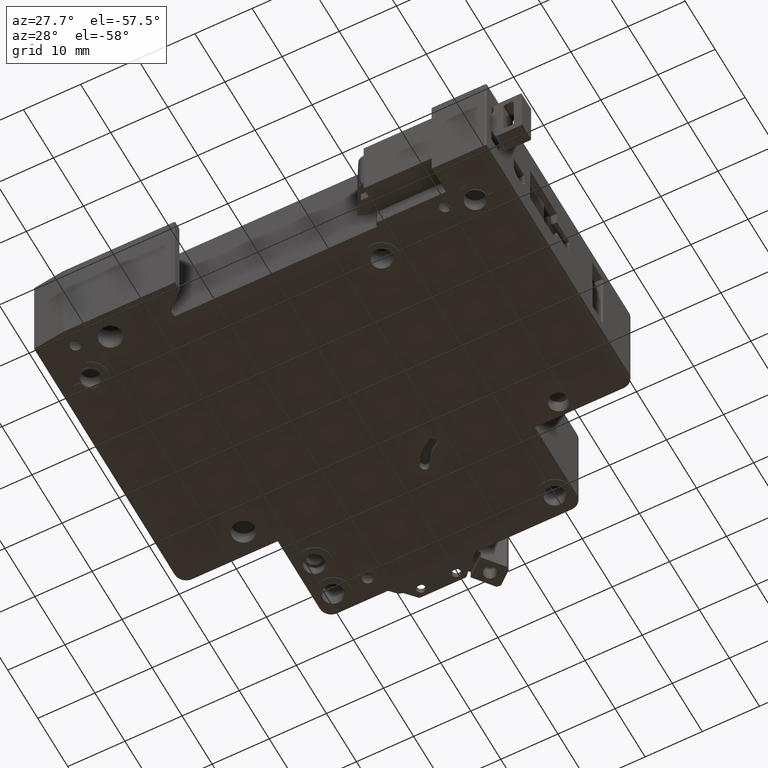
[diagram: clean part render]
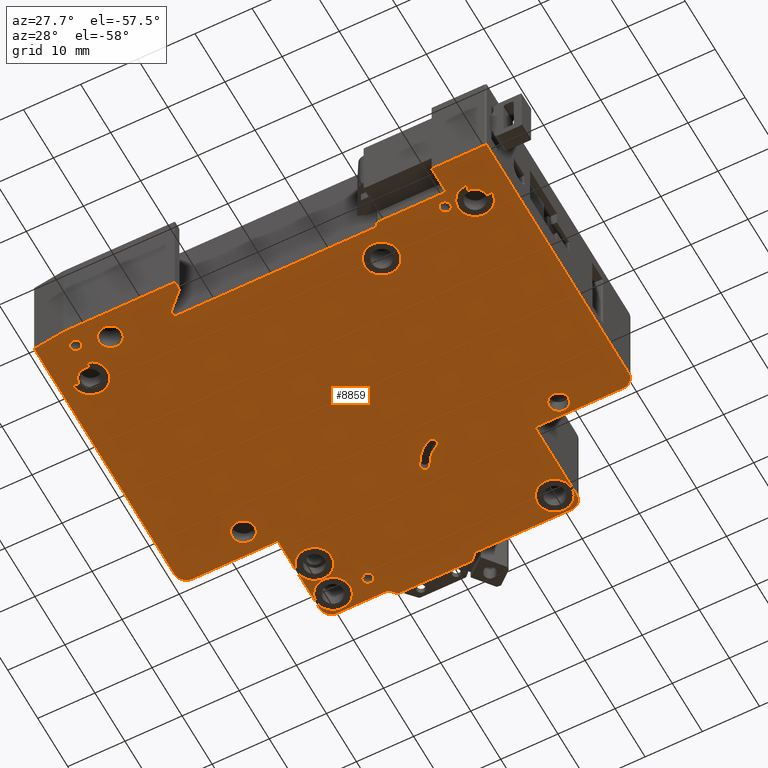
[diagram: same view with one face highlighted and labeled with its STEP entity id]
A machine part, auxiliary view. The second image highlights one B-rep face of the part: STEP entity #8859.
In plain terms, the highlighted planar face has unit normal (-0, 0, 1).
Its self-contained STEP definition (entity closure, byte-faithful):
#11 = EDGE_LOOP ( 'NONE', ( #6555, #13260, #8227, #4003, #1931 ) ) ;
#120 = LINE ( 'NONE', #11288, #13633 ) ;
#124 = CARTESIAN_POINT ( 'NONE',  ( 17.50000000000000000, 63.50000000000330400, -8.750000000000000000 ) ) ;
#125 = CARTESIAN_POINT ( 'NONE',  ( 66.19999999970296800, 47.10000000000715700, -8.750000000000000000 ) ) ;
#130 = CARTESIAN_POINT ( 'NONE',  ( 73.29999999999999700, 6.240408205773521300, -8.750000000000000000 ) ) ;
#146 = AXIS2_PLACEMENT_3D ( 'NONE', #11470, #3626, #12757 ) ;
#174 = DIRECTION ( 'NONE',  ( 1.000000000000000000, 0.0000000000000000000, 0.0000000000000000000 ) ) ;
#229 = EDGE_CURVE ( 'NONE', #15652, #9985, #15450, .T. ) ;
#244 = VERTEX_POINT ( 'NONE', #9984 ) ;
#281 = CIRCLE ( 'NONE', #1160, 1.999999999999960000 ) ;
#297 = ORIENTED_EDGE ( 'NONE', *, *, #7767, .T. ) ;
#307 = AXIS2_PLACEMENT_3D ( 'NONE', #10347, #2452, #11617 ) ;
#355 = DIRECTION ( 'NONE',  ( 1.000000000000000000, 0.0000000000000000000, 0.0000000000000000000 ) ) ;
#373 = ORIENTED_EDGE ( 'NONE', *, *, #14328, .F. ) ;
#458 = DIRECTION ( 'NONE',  ( 0.0000000000000000000, -0.0000000000000000000, -1.000000000000000000 ) ) ;
#522 = CARTESIAN_POINT ( 'NONE',  ( 55.89999999999999900, 11.00000000000000400, -8.750000000000000000 ) ) ;
#526 = AXIS2_PLACEMENT_3D ( 'NONE', #14039, #6397, #15318 ) ;
#533 = LINE ( 'NONE', #16561, #7247 ) ;
#553 = CARTESIAN_POINT ( 'NONE',  ( 58.00000000000000700, 5.299999999972984100, -8.750000000000000000 ) ) ;
#557 = VERTEX_POINT ( 'NONE', #3893 ) ;
#587 = CARTESIAN_POINT ( 'NONE',  ( 19.50000000000000000, 65.50000000000331100, -8.750000000000000000 ) ) ;
#688 = DIRECTION ( 'NONE',  ( 0.0000000000000000000, -0.0000000000000000000, -1.000000000000000000 ) ) ;
#762 = CARTESIAN_POINT ( 'NONE',  ( 58.00000000000000700, 5.500000000000038200, -8.750000000000000000 ) ) ;
#808 = EDGE_CURVE ( 'NONE', #9985, #3385, #11209, .T. ) ;
#822 = AXIS2_PLACEMENT_3D ( 'NONE', #15969, #8339, #355 ) ;
#874 = DIRECTION ( 'NONE',  ( 1.000000000000000000, 0.0000000000000000000, 0.0000000000000000000 ) ) ;
#896 = DIRECTION ( 'NONE',  ( -0.0000000000000000000, 0.0000000000000000000, 1.000000000000000000 ) ) ;
#914 = CARTESIAN_POINT ( 'NONE',  ( 49.50000000000064700, 49.99999999999789700, -8.750000000000000000 ) ) ;
#926 = EDGE_CURVE ( 'NONE', #3385, #4048, #8819, .T. ) ;
#943 = CARTESIAN_POINT ( 'NONE',  ( 76.70000000000000300, 8.199999999999999300, -8.750000000000000000 ) ) ;
#969 = VERTEX_POINT ( 'NONE', #2380 ) ;
#988 = DIRECTION ( 'NONE',  ( 1.591098326534340900E-011, -1.000000000000000000, 0.0000000000000000000 ) ) ;
#1007 = AXIS2_PLACEMENT_3D ( 'NONE', #5756, #14728, #7104 ) ;
#1016 = DIRECTION ( 'NONE',  ( -0.0000000000000000000, 0.0000000000000000000, 1.000000000000000000 ) ) ;
#1023 = VERTEX_POINT ( 'NONE', #3833 ) ;
#1024 = CARTESIAN_POINT ( 'NONE',  ( -17.27440989133160100, 15.91064068936660900, -8.750000000000000000 ) ) ;
#1030 = VERTEX_POINT ( 'NONE', #1201 ) ;
#1050 = ORIENTED_EDGE ( 'NONE', *, *, #4686, .T. ) ;
#1083 = CARTESIAN_POINT ( 'NONE',  ( -10.82500000000569100, 10.82500000000719200, -8.750000000000000000 ) ) ;
#1108 = LINE ( 'NONE', #2226, #14556 ) ;
#1110 = CARTESIAN_POINT ( 'NONE',  ( 56.39999999986779500, 61.99999999992734700, -8.750000000000000000 ) ) ;
#1122 = CARTESIAN_POINT ( 'NONE',  ( 3.559109769979346400, 9.700000000000136100, -8.750000000000000000 ) ) ;
#1131 = DIRECTION ( 'NONE',  ( -0.0000000000000000000, 0.0000000000000000000, 1.000000000000000000 ) ) ;
#1134 = CARTESIAN_POINT ( 'NONE',  ( 73.70000000000000300, 8.199999999999999300, -8.750000000000000000 ) ) ;
#1159 = ORIENTED_EDGE ( 'NONE', *, *, #5497, .F. ) ;
#1160 = AXIS2_PLACEMENT_3D ( 'NONE', #2594, #11756, #3931 ) ;
#1201 = CARTESIAN_POINT ( 'NONE',  ( 69.95000000000001700, 7.200000000000033000, -8.750000000000000000 ) ) ;
#1337 = CARTESIAN_POINT ( 'NONE',  ( 60.49999999999850100, 63.50000000000329000, -8.750000000000000000 ) ) ;
#1364 = ORIENTED_EDGE ( 'NONE', *, *, #6635, .F. ) ;
#1378 = AXIS2_PLACEMENT_3D ( 'NONE', #6353, #15272, #7660 ) ;
#1415 = CIRCLE ( 'NONE', #8889, 1.999999999999998200 ) ;
#1419 = VERTEX_POINT ( 'NONE', #9990 ) ;
#1479 = EDGE_CURVE ( 'NONE', #15849, #6270, #11782, .T. ) ;
#1510 = AXIS2_PLACEMENT_3D ( 'NONE', #6034, #14980, #7370 ) ;
#1520 = AXIS2_PLACEMENT_3D ( 'NONE', #8894, #8813, #8772 ) ;
#1542 = AXIS2_PLACEMENT_3D ( 'NONE', #8668, #688, #9946 ) ;
#1545 = DIRECTION ( 'NONE',  ( 0.0000000000000000000, 1.000000000000000000, 0.0000000000000000000 ) ) ;
#1568 = CIRCLE ( 'NONE', #3742, 2.999999999999999100 ) ;
#1679 = DIRECTION ( 'NONE',  ( 0.0000000000000000000, -0.0000000000000000000, -1.000000000000000000 ) ) ;
#1682 = VERTEX_POINT ( 'NONE', #8854 ) ;
#1751 = DIRECTION ( 'NONE',  ( -0.6774757547513864400, 0.7355451051594588100, 0.0000000000000000000 ) ) ;
#1789 = ORIENTED_EDGE ( 'NONE', *, *, #8390, .F. ) ;
#1793 = ORIENTED_EDGE ( 'NONE', *, *, #10866, .F. ) ;
#1822 = FACE_BOUND ( 'NONE', #7690, .T. ) ;
#1827 = CARTESIAN_POINT ( 'NONE',  ( 5.999999999424611400, 1.084202172485504400E-016, -8.750000000000000000 ) ) ;
#1849 = VERTEX_POINT ( 'NONE', #8263 ) ;
#1858 = DIRECTION ( 'NONE',  ( 1.000000000000000000, 0.0000000000000000000, 0.0000000000000000000 ) ) ;
#1925 = CARTESIAN_POINT ( 'NONE',  ( 6.500000000000005300, 7.645950378226102000, -8.750000000000000000 ) ) ;
#1931 = ORIENTED_EDGE ( 'NONE', *, *, #6647, .T. ) ;
#2016 = EDGE_LOOP ( 'NONE', ( #11364, #1364 ) ) ;
#2020 = EDGE_CURVE ( 'NONE', #11323, #1419, #10181, .T. ) ;
#2066 = ORIENTED_EDGE ( 'NONE', *, *, #9122, .T. ) ;
#2068 = CARTESIAN_POINT ( 'NONE',  ( 5.750000000000005300, 9.500000000000008900, -8.750000000000000000 ) ) ;
#2087 = VECTOR ( 'NONE', #14645, 1000.000000000000000 ) ;
#2121 = EDGE_CURVE ( 'NONE', #15849, #14535, #11960, .T. ) ;
#2129 = CARTESIAN_POINT ( 'NONE',  ( 28.19999999999816300, 65.45000000000330000, -8.750000000000000000 ) ) ;
#2156 = CIRCLE ( 'NONE', #11795, 3.000000000000002700 ) ;
#2209 = CARTESIAN_POINT ( 'NONE',  ( 14.00000000000000000, 4.200000000000000200, -8.750000000000000000 ) ) ;
#2226 = CARTESIAN_POINT ( 'NONE',  ( 58.00000000000000700, 0.0000000000000000000, -8.750000000000000000 ) ) ;
#2255 = FACE_BOUND ( 'NONE', #12875, .T. ) ;
#2269 = CARTESIAN_POINT ( 'NONE',  ( 29.50526315788970100, 66.70000000000642600, -8.750000000000000000 ) ) ;
#2322 = ORIENTED_EDGE ( 'NONE', *, *, #10321, .F. ) ;
#2323 = VERTEX_POINT ( 'NONE', #14750 ) ;
#2337 = AXIS2_PLACEMENT_3D ( 'NONE', #3653, #12779, #5005 ) ;
#2370 = DIRECTION ( 'NONE',  ( -0.6774757547513813300, -0.7355451051594634700, 0.0000000000000000000 ) ) ;
#2380 = CARTESIAN_POINT ( 'NONE',  ( 28.19999999999736300, 65.50037037828450100, -8.750000000000000000 ) ) ;
#2416 = CIRCLE ( 'NONE', #3897, 0.4999999999985189600 ) ;
#2450 = AXIS2_PLACEMENT_3D ( 'NONE', #13499, #5798, #14766 ) ;
#2452 = DIRECTION ( 'NONE',  ( 0.0000000000000000000, -0.0000000000000000000, -1.000000000000000000 ) ) ;
#2473 = DIRECTION ( 'NONE',  ( 1.000000000000000000, 0.0000000000000000000, 0.0000000000000000000 ) ) ;
#2480 = DIRECTION ( 'NONE',  ( 1.000000000000000000, 0.0000000000000000000, 0.0000000000000000000 ) ) ;
#2505 = EDGE_CURVE ( 'NONE', #5124, #16059, #4612, .T. ) ;
#2520 = ORIENTED_EDGE ( 'NONE', *, *, #4971, .T. ) ;
#2536 = CIRCLE ( 'NONE', #8560, 3.000000000000002700 ) ;
#2563 = EDGE_CURVE ( 'NONE', #15237, #9069, #8150, .T. ) ;
#2594 = CARTESIAN_POINT ( 'NONE',  ( 73.70000000000001700, 8.200000000000020600, -8.750000000000000000 ) ) ;
#2613 = EDGE_CURVE ( 'NONE', #6368, #14535, #2927, .T. ) ;
#2628 = DIRECTION ( 'NONE',  ( 0.0000000000000000000, -0.0000000000000000000, -1.000000000000000000 ) ) ;
#2642 = LINE ( 'NONE', #2882, #13442 ) ;
#2680 = FACE_BOUND ( 'NONE', #7873, .T. ) ;
#2693 = DIRECTION ( 'NONE',  ( 1.000000000000000000, 0.0000000000000000000, 0.0000000000000000000 ) ) ;
#2808 = EDGE_CURVE ( 'NONE', #244, #6368, #10144, .T. ) ;
#2820 = ORIENTED_EDGE ( 'NONE', *, *, #11987, .T. ) ;
#2875 = VERTEX_POINT ( 'NONE', #15559 ) ;
#2882 = CARTESIAN_POINT ( 'NONE',  ( 1.637829011552916400E-013, 65.50000000000342500, -8.750000000000000000 ) ) ;
#2927 = LINE ( 'NONE', #6072, #12938 ) ;
#2939 = EDGE_CURVE ( 'NONE', #16337, #3882, #15296, .T. ) ;
#2974 = ORIENTED_EDGE ( 'NONE', *, *, #6549, .F. ) ;
#3007 = CARTESIAN_POINT ( 'NONE',  ( 6.767857142857136100, 6.677949887628723300, -8.750000000000000000 ) ) ;
#3056 = DIRECTION ( 'NONE',  ( 1.000000000000000000, 5.801495453212029500E-015, 0.0000000000000000000 ) ) ;
#3078 = CARTESIAN_POINT ( 'NONE',  ( 73.20000000000001700, 5.750510257216852500, -8.750000000000000000 ) ) ;
#3087 = FACE_BOUND ( 'NONE', #16807, .T. ) ;
#3130 = ORIENTED_EDGE ( 'NONE', *, *, #12853, .F. ) ;
#3142 = EDGE_CURVE ( 'NONE', #244, #16149, #5638, .T. ) ;
#3151 = ORIENTED_EDGE ( 'NONE', *, *, #12675, .T. ) ;
#3256 = CARTESIAN_POINT ( 'NONE',  ( 42.49473684210708800, 66.70000000000648300, -8.750000000000003600 ) ) ;
#3257 = CARTESIAN_POINT ( 'NONE',  ( 69.60000000029705800, 47.10000000000715700, -8.750000000000000000 ) ) ;
#3272 = DIRECTION ( 'NONE',  ( -0.0000000000000000000, 0.0000000000000000000, 1.000000000000000000 ) ) ;
#3335 = EDGE_CURVE ( 'NONE', #15627, #16337, #16073, .T. ) ;
#3343 = AXIS2_PLACEMENT_3D ( 'NONE', #8436, #458, #9738 ) ;
#3376 = CARTESIAN_POINT ( 'NONE',  ( 0.5124999999999999600, 47.50000000000729000, -8.749999999996021000 ) ) ;
#3385 = VERTEX_POINT ( 'NONE', #16147 ) ;
#3386 = EDGE_CURVE ( 'NONE', #16149, #14130, #11910, .T. ) ;
#3395 = LINE ( 'NONE', #10871, #9590 ) ;
#3424 = DIRECTION ( 'NONE',  ( 1.000000000000000000, 0.0000000000000000000, 0.0000000000000000000 ) ) ;
#3449 = VERTEX_POINT ( 'NONE', #7402 ) ;
#3481 = ORIENTED_EDGE ( 'NONE', *, *, #3142, .T. ) ;
#3524 = ORIENTED_EDGE ( 'NONE', *, *, #6268, .T. ) ;
#3537 = ORIENTED_EDGE ( 'NONE', *, *, #13063, .F. ) ;
#3580 = CARTESIAN_POINT ( 'NONE',  ( 70.39999999999999100, 4.799999999974497600, -8.750000000000000000 ) ) ;
#3609 = VECTOR ( 'NONE', #9686, 1000.000000000000000 ) ;
#3626 = DIRECTION ( 'NONE',  ( -0.0000000000000000000, 0.0000000000000000000, 1.000000000000000000 ) ) ;
#3630 = CIRCLE ( 'NONE', #15895, 0.9500000000000063900 ) ;
#3653 = CARTESIAN_POINT ( 'NONE',  ( 20.60000000793647200, 61.99999999992735400, -8.750000000000000000 ) ) ;
#3667 = CARTESIAN_POINT ( 'NONE',  ( 73.70000000000000300, 5.200000000000001100, -8.750000000000000000 ) ) ;
#3693 = EDGE_CURVE ( 'NONE', #15627, #12276, #6818, .T. ) ;
#3733 = DIRECTION ( 'NONE',  ( 0.0000000000000000000, -0.0000000000000000000, -1.000000000000000000 ) ) ;
#3742 = AXIS2_PLACEMENT_3D ( 'NONE', #12655, #4871, #13893 ) ;
#3833 = CARTESIAN_POINT ( 'NONE',  ( 17.60000000793647200, 55.79999999992195800, -8.750000000000000000 ) ) ;
#3835 = DIRECTION ( 'NONE',  ( -0.0000000000000000000, 0.0000000000000000000, 1.000000000000000000 ) ) ;
#3840 = EDGE_CURVE ( 'NONE', #14130, #7762, #14580, .T. ) ;
#3857 = CARTESIAN_POINT ( 'NONE',  ( 0.5125000000000009500, 0.6737802779089938600, -8.750000000000000000 ) ) ;
#3882 = VERTEX_POINT ( 'NONE', #11326 ) ;
#3893 = CARTESIAN_POINT ( 'NONE',  ( 60.49999999999850100, 65.50000000000328300, -8.750000000000000000 ) ) ;
#3897 = AXIS2_PLACEMENT_3D ( 'NONE', #3905, #13008, #5254 ) ;
#3899 = VERTEX_POINT ( 'NONE', #15198 ) ;
#3905 = CARTESIAN_POINT ( 'NONE',  ( 28.18075834983112000, 66.00000000000179100, -8.750000000000000000 ) ) ;
#3931 = DIRECTION ( 'NONE',  ( 1.000000000000000000, 0.0000000000000000000, 0.0000000000000000000 ) ) ;
#3940 = LINE ( 'NONE', #6045, #13489 ) ;
#3986 = CARTESIAN_POINT ( 'NONE',  ( 25.50000000000000400, 0.0000000000000000000, -8.750000000000000000 ) ) ;
#4003 = ORIENTED_EDGE ( 'NONE', *, *, #926, .T. ) ;
#4006 = ORIENTED_EDGE ( 'NONE', *, *, #11709, .T. ) ;
#4048 = VERTEX_POINT ( 'NONE', #15536 ) ;
#4051 = VERTEX_POINT ( 'NONE', #7910 ) ;
#4109 = EDGE_LOOP ( 'NONE', ( #3151, #2066 ) ) ;
#4112 = CARTESIAN_POINT ( 'NONE',  ( 69.00000000000000000, 7.200000000000033000, -8.750000000000000000 ) ) ;
#4229 = CARTESIAN_POINT ( 'NONE',  ( 23.60000000793646900, 55.79999999992195800, -8.750000000000000000 ) ) ;
#4274 = DIRECTION ( 'NONE',  ( -0.0000000000000000000, 0.0000000000000000000, 1.000000000000000000 ) ) ;
#4294 = AXIS2_PLACEMENT_3D ( 'NONE', #1337, #10572, #2693 ) ;
#4307 = VERTEX_POINT ( 'NONE', #9100 ) ;
#4327 = VECTOR ( 'NONE', #13983, 1000.000000000000000 ) ;
#4341 = EDGE_CURVE ( 'NONE', #12276, #16048, #281, .T. ) ;
#4369 = EDGE_CURVE ( 'NONE', #1419, #11323, #13785, .T. ) ;
#4405 = ORIENTED_EDGE ( 'NONE', *, *, #4710, .F. ) ;
#4426 = DIRECTION ( 'NONE',  ( 1.000000000000000000, 0.0000000000000000000, 0.0000000000000000000 ) ) ;
#4472 = CARTESIAN_POINT ( 'NONE',  ( 0.0000000000000000000, 9.500000000000147400, -8.750000000000000000 ) ) ;
#4477 = EDGE_CURVE ( 'NONE', #9395, #7762, #6168, .T. ) ;
#4561 = ORIENTED_EDGE ( 'NONE', *, *, #2808, .F. ) ;
#4577 = DIRECTION ( 'NONE',  ( 0.0000000000000000000, 1.000000000000000000, -0.0000000000000000000 ) ) ;
#4612 = CIRCLE ( 'NONE', #13719, 1.700000000297047200 ) ;
#4664 = CIRCLE ( 'NONE', #5890, 0.5000000000000420800 ) ;
#4672 = CARTESIAN_POINT ( 'NONE',  ( 73.70000000000001700, 5.750510257216852500, -8.750000000000000000 ) ) ;
#4686 = EDGE_CURVE ( 'NONE', #16048, #16454, #4664, .T. ) ;
#4695 = CIRCLE ( 'NONE', #2337, 2.999999999999999100 ) ;
#4710 = EDGE_CURVE ( 'NONE', #5401, #9395, #1108, .T. ) ;
#4746 = AXIS2_PLACEMENT_3D ( 'NONE', #5351, #14353, #6724 ) ;
#4807 = ORIENTED_EDGE ( 'NONE', *, *, #3840, .T. ) ;
#4827 = CIRCLE ( 'NONE', #3343, 2.999999999999999100 ) ;
#4837 = VECTOR ( 'NONE', #15632, 1000.000000000000000 ) ;
#4852 = AXIS2_PLACEMENT_3D ( 'NONE', #3078, #12224, #4426 ) ;
#4871 = DIRECTION ( 'NONE',  ( 0.0000000000000000000, -0.0000000000000000000, -1.000000000000000000 ) ) ;
#4922 = VECTOR ( 'NONE', #7123, 1000.000000000000000 ) ;
#4928 = CARTESIAN_POINT ( 'NONE',  ( 76.14948974278321700, 8.700000000000020600, -8.750000000000000000 ) ) ;
#4970 = LINE ( 'NONE', #15934, #11877 ) ;
#4971 = EDGE_CURVE ( 'NONE', #10137, #15686, #6375, .T. ) ;
#5005 = DIRECTION ( 'NONE',  ( 1.000000000000000000, 0.0000000000000000000, 0.0000000000000000000 ) ) ;
#5010 = VERTEX_POINT ( 'NONE', #16752 ) ;
#5124 = VERTEX_POINT ( 'NONE', #125 ) ;
#5130 = ORIENTED_EDGE ( 'NONE', *, *, #4477, .F. ) ;
#5178 = ORIENTED_EDGE ( 'NONE', *, *, #1479, .F. ) ;
#5198 = CIRCLE ( 'NONE', #146, 1.700000000297047200 ) ;
#5254 = DIRECTION ( 'NONE',  ( 1.000000000000000000, 0.0000000000000000000, 0.0000000000000000000 ) ) ;
#5285 = EDGE_CURVE ( 'NONE', #14698, #5401, #6136, .T. ) ;
#5313 = CARTESIAN_POINT ( 'NONE',  ( 43.79999999969146500, -2.051483660483898700E-010, -8.750000000000000000 ) ) ;
#5351 = CARTESIAN_POINT ( 'NONE',  ( 6.500000000000005300, 3.100000000000019200, -8.750000000000000000 ) ) ;
#5376 = CARTESIAN_POINT ( 'NONE',  ( 77.98750000000002600, 47.50000000000739700, -8.750000000000000000 ) ) ;
#5401 = VERTEX_POINT ( 'NONE', #762 ) ;
#5403 = FACE_OUTER_BOUND ( 'NONE', #12475, .T. ) ;
#5479 = DIRECTION ( 'NONE',  ( 1.000000000000000000, 0.0000000000000000000, 0.0000000000000000000 ) ) ;
#5497 = EDGE_CURVE ( 'NONE', #8692, #16454, #5903, .T. ) ;
#5524 = DIRECTION ( 'NONE',  ( -1.000000000000000000, 2.500502307714245400E-015, 0.0000000000000000000 ) ) ;
#5536 = CIRCLE ( 'NONE', #10268, 2.999999999999995600 ) ;
#5569 = VERTEX_POINT ( 'NONE', #3376 ) ;
#5581 = ORIENTED_EDGE ( 'NONE', *, *, #2121, .T. ) ;
#5589 = VERTEX_POINT ( 'NONE', #6149 ) ;
#5594 = CIRCLE ( 'NONE', #6154, 0.1999999999999875200 ) ;
#5609 = CARTESIAN_POINT ( 'NONE',  ( 58.49999999999850800, 4.799999999974497600, -8.750000000000000000 ) ) ;
#5610 = VECTOR ( 'NONE', #11974, 1000.000000000000000 ) ;
#5611 = CARTESIAN_POINT ( 'NONE',  ( 46.82499999999878100, 46.82500000000527500, -8.750000000000000000 ) ) ;
#5638 = LINE ( 'NONE', #6157, #6085 ) ;
#5654 = LINE ( 'NONE', #13382, #2087 ) ;
#5677 = CARTESIAN_POINT ( 'NONE',  ( 17.60000000793647200, 61.99999999992735400, -8.750000000000000000 ) ) ;
#5745 = EDGE_CURVE ( 'NONE', #5916, #14698, #9569, .T. ) ;
#5747 = CARTESIAN_POINT ( 'NONE',  ( 3.520755674482790200E-014, 5.500000000000409500, -8.750000000000000000 ) ) ;
#5756 = CARTESIAN_POINT ( 'NONE',  ( 5.750000000000005300, 9.500000000000008900, -8.750000000000000000 ) ) ;
#5767 = CARTESIAN_POINT ( 'NONE',  ( 67.90000000000002000, 47.10000000000715700, -8.750000000000000000 ) ) ;
#5797 = AXIS2_PLACEMENT_3D ( 'NONE', #11660, #3835, #12947 ) ;
#5798 = DIRECTION ( 'NONE',  ( -0.0000000000000000000, 0.0000000000000000000, 1.000000000000000000 ) ) ;
#5825 = FACE_BOUND ( 'NONE', #4109, .T. ) ;
#5849 = EDGE_CURVE ( 'NONE', #10530, #1030, #11190, .T. ) ;
#5878 = LINE ( 'NONE', #6416, #8974 ) ;
#5890 = AXIS2_PLACEMENT_3D ( 'NONE', #4928, #13950, #6304 ) ;
#5903 = LINE ( 'NONE', #13994, #12367 ) ;
#5916 = VERTEX_POINT ( 'NONE', #14523 ) ;
#5962 = EDGE_CURVE ( 'NONE', #14514, #5916, #3395, .T. ) ;
#6034 = CARTESIAN_POINT ( 'NONE',  ( 26.70000000006790900, 61.99999999992734700, -8.750000000000000000 ) ) ;
#6045 = CARTESIAN_POINT ( 'NONE',  ( -6.397620645963808400E-014, 49.50000000000729700, -8.750000000000000000 ) ) ;
#6070 = ORIENTED_EDGE ( 'NONE', *, *, #9142, .F. ) ;
#6072 = CARTESIAN_POINT ( 'NONE',  ( 79.98750000000002600, 0.0000000000000000000, -8.750000000000000000 ) ) ;
#6085 = VECTOR ( 'NONE', #15045, 1000.000000000000000 ) ;
#6107 = CARTESIAN_POINT ( 'NONE',  ( 43.42466796721388500, 47.42117455197082200, -8.750000000000000000 ) ) ;
#6136 = LINE ( 'NONE', #5747, #9584 ) ;
#6147 = DIRECTION ( 'NONE',  ( -1.000000000000000000, 4.663235150475291800E-017, -0.0000000000000000000 ) ) ;
#6149 = CARTESIAN_POINT ( 'NONE',  ( 3.559109769979346400, 9.500000000000147400, -8.750000000000000000 ) ) ;
#6154 = AXIS2_PLACEMENT_3D ( 'NONE', #13993, #6362, #15280 ) ;
#6157 = CARTESIAN_POINT ( 'NONE',  ( 9.066674948072921700E-025, 8.151842603365492200E-012, -8.750000000000000000 ) ) ;
#6168 = CIRCLE ( 'NONE', #822, 0.4999999999984877700 ) ;
#6268 = EDGE_CURVE ( 'NONE', #11953, #8357, #6358, .T. ) ;
#6270 = VERTEX_POINT ( 'NONE', #13767 ) ;
#6274 = FACE_BOUND ( 'NONE', #12671, .T. ) ;
#6304 = DIRECTION ( 'NONE',  ( 1.000000000000000000, 0.0000000000000000000, 0.0000000000000000000 ) ) ;
#6348 = LINE ( 'NONE', #13173, #9382 ) ;
#6349 = CARTESIAN_POINT ( 'NONE',  ( 17.50000000000000000, 0.0000000000000000000, -8.750000000000000000 ) ) ;
#6353 = CARTESIAN_POINT ( 'NONE',  ( 13.60000000000000000, 45.50000000000000000, -8.750000000000000000 ) ) ;
#6358 = CIRCLE ( 'NONE', #15681, 2.000000000000005300 ) ;
#6362 = DIRECTION ( 'NONE',  ( -0.0000000000000000000, 0.0000000000000000000, 1.000000000000000000 ) ) ;
#6368 = VERTEX_POINT ( 'NONE', #13858 ) ;
#6375 = CIRCLE ( 'NONE', #15021, 2.000000000000000000 ) ;
#6397 = DIRECTION ( 'NONE',  ( -0.0000000000000000000, 0.0000000000000000000, 1.000000000000000000 ) ) ;
#6416 = CARTESIAN_POINT ( 'NONE',  ( 0.08911282116996747900, 0.7257656867554843600, -8.750000000000000000 ) ) ;
#6426 = EDGE_CURVE ( 'NONE', #3882, #8692, #2536, .T. ) ;
#6486 = CARTESIAN_POINT ( 'NONE',  ( 7.038369070146402800, -22.60712294887754900, -8.750000000000000000 ) ) ;
#6512 = ORIENTED_EDGE ( 'NONE', *, *, #2939, .F. ) ;
#6549 = EDGE_CURVE ( 'NONE', #2323, #14514, #8356, .T. ) ;
#6555 = ORIENTED_EDGE ( 'NONE', *, *, #15383, .F. ) ;
#6635 = EDGE_CURVE ( 'NONE', #4051, #14470, #10563, .T. ) ;
#6647 = EDGE_CURVE ( 'NONE', #4048, #3449, #10168, .T. ) ;
#6701 = PLANE ( 'NONE',  #13537 ) ;
#6724 = DIRECTION ( 'NONE',  ( 1.000000000000000000, 0.0000000000000000000, 0.0000000000000000000 ) ) ;
#6728 = VECTOR ( 'NONE', #16686, 1000.000000000000100 ) ;
#6747 = DIRECTION ( 'NONE',  ( 1.000000000000000000, 0.0000000000000000000, 0.0000000000000000000 ) ) ;
#6754 = VERTEX_POINT ( 'NONE', #587 ) ;
#6811 = CARTESIAN_POINT ( 'NONE',  ( 73.70000000000000300, 8.199999999999999300, -8.750000000000000000 ) ) ;
#6818 = CIRCLE ( 'NONE', #4852, 0.5000000000000004400 ) ;
#6946 = DIRECTION ( 'NONE',  ( 0.0000000000000000000, -0.0000000000000000000, -1.000000000000000000 ) ) ;
#6983 = CARTESIAN_POINT ( 'NONE',  ( 43.79999999999825600, 65.50037037828451500, -8.750000000000000000 ) ) ;
#7086 = EDGE_CURVE ( 'NONE', #9372, #2323, #6348, .T. ) ;
#7094 = AXIS2_PLACEMENT_3D ( 'NONE', #6811, #15730, #8109 ) ;
#7104 = DIRECTION ( 'NONE',  ( 1.000000000000000000, 0.0000000000000000000, 0.0000000000000000000 ) ) ;
#7114 = DIRECTION ( 'NONE',  ( 1.000000000000000000, 0.0000000000000000000, 0.0000000000000000000 ) ) ;
#7123 = DIRECTION ( 'NONE',  ( -1.000000000000000000, 0.0000000000000000000, -0.0000000000000000000 ) ) ;
#7154 = AXIS2_PLACEMENT_3D ( 'NONE', #914, #896, #874 ) ;
#7205 = VERTEX_POINT ( 'NONE', #8374 ) ;
#7247 = VECTOR ( 'NONE', #988, 1000.000000000000000 ) ;
#7261 = CARTESIAN_POINT ( 'NONE',  ( 70.39999999999999100, -4.541671877689661200E-018, -8.750000000000000000 ) ) ;
#7275 = VERTEX_POINT ( 'NONE', #3256 ) ;
#7290 = CARTESIAN_POINT ( 'NONE',  ( 55.89999999999999900, 11.00000000000000400, -8.750000000000000000 ) ) ;
#7312 = DIRECTION ( 'NONE',  ( 0.0000000000000000000, -0.0000000000000000000, -1.000000000000000000 ) ) ;
#7336 = ORIENTED_EDGE ( 'NONE', *, *, #4369, .F. ) ;
#7350 = DIRECTION ( 'NONE',  ( 0.0000000000000000000, 1.000000000000000000, -0.0000000000000000000 ) ) ;
#7370 = DIRECTION ( 'NONE',  ( 1.000000000000000000, 0.0000000000000000000, 0.0000000000000000000 ) ) ;
#7385 = DIRECTION ( 'NONE',  ( -1.000000000000000000, -1.292448615346033400E-015, 0.0000000000000000000 ) ) ;
#7395 = EDGE_CURVE ( 'NONE', #15686, #10137, #15107, .T. ) ;
#7402 = CARTESIAN_POINT ( 'NONE',  ( 47.38690869129654700, 45.46846106481483900, -8.750000000000000000 ) ) ;
#7417 = EDGE_CURVE ( 'NONE', #1023, #13808, #4827, .T. ) ;
#7481 = DIRECTION ( 'NONE',  ( 0.0000000000000000000, 1.000000000000000000, -0.0000000000000000000 ) ) ;
#7537 = EDGE_CURVE ( 'NONE', #9372, #8779, #5878, .T. ) ;
#7548 = VERTEX_POINT ( 'NONE', #15279 ) ;
#7660 = DIRECTION ( 'NONE',  ( 1.000000000000000000, 0.0000000000000000000, 0.0000000000000000000 ) ) ;
#7690 = EDGE_LOOP ( 'NONE', ( #8421, #10368 ) ) ;
#7734 = VERTEX_POINT ( 'NONE', #8157 ) ;
#7762 = VERTEX_POINT ( 'NONE', #5609 ) ;
#7767 = EDGE_CURVE ( 'NONE', #8779, #5569, #5654, .T. ) ;
#7799 = CARTESIAN_POINT ( 'NONE',  ( 58.89999999999999900, 11.00000000000000400, -8.750000000000000000 ) ) ;
#7873 = EDGE_LOOP ( 'NONE', ( #14898, #14407 ) ) ;
#7890 = LINE ( 'NONE', #6349, #4327 ) ;
#7891 = DIRECTION ( 'NONE',  ( -0.0000000000000000000, 0.0000000000000000000, 1.000000000000000000 ) ) ;
#7910 = CARTESIAN_POINT ( 'NONE',  ( 23.60000000793646900, 61.99999999992735400, -8.750000000000000000 ) ) ;
#7988 = DIRECTION ( 'NONE',  ( 1.000000000000000000, 0.0000000000000000000, 0.0000000000000000000 ) ) ;
#8021 = ORIENTED_EDGE ( 'NONE', *, *, #10964, .T. ) ;
#8053 = AXIS2_PLACEMENT_3D ( 'NONE', #11576, #3733, #12852 ) ;
#8109 = DIRECTION ( 'NONE',  ( 1.000000000000000000, 0.0000000000000000000, 0.0000000000000000000 ) ) ;
#8150 = CIRCLE ( 'NONE', #16275, 3.000000000000002700 ) ;
#8157 = CARTESIAN_POINT ( 'NONE',  ( 2.750000000000006200, 9.500000000000147400, -8.750000000000000000 ) ) ;
#8166 = DIRECTION ( 'NONE',  ( -0.0000000000000000000, 0.0000000000000000000, 1.000000000000000000 ) ) ;
#8227 = ORIENTED_EDGE ( 'NONE', *, *, #808, .T. ) ;
#8239 = ORIENTED_EDGE ( 'NONE', *, *, #3335, .F. ) ;
#8263 = CARTESIAN_POINT ( 'NONE',  ( 25.75000000011160900, 61.99999999992734700, -8.750000000000000000 ) ) ;
#8266 = EDGE_CURVE ( 'NONE', #5569, #12456, #9526, .T. ) ;
#8272 = VECTOR ( 'NONE', #15602, 1000.000000000000000 ) ;
#8323 = ORIENTED_EDGE ( 'NONE', *, *, #13604, .F. ) ;
#8339 = DIRECTION ( 'NONE',  ( -0.0000000000000000000, 0.0000000000000000000, 1.000000000000000000 ) ) ;
#8350 = DIRECTION ( 'NONE',  ( -0.7071067811864946200, 0.7071067811866005300, 0.0000000000000000000 ) ) ;
#8353 = ORIENTED_EDGE ( 'NONE', *, *, #9337, .F. ) ;
#8356 = LINE ( 'NONE', #3986, #4837 ) ;
#8357 = VERTEX_POINT ( 'NONE', #1925 ) ;
#8358 = ORIENTED_EDGE ( 'NONE', *, *, #4341, .T. ) ;
#8374 = CARTESIAN_POINT ( 'NONE',  ( 15.60000000000000000, 45.50000000000000000, -8.750000000000000000 ) ) ;
#8383 = CARTESIAN_POINT ( 'NONE',  ( 79.98750000000002600, 47.50000000000739700, -8.750000000000000000 ) ) ;
#8390 = EDGE_CURVE ( 'NONE', #1682, #12456, #3940, .T. ) ;
#8392 = DIRECTION ( 'NONE',  ( 1.000000000000000000, -6.401373953604597600E-015, 0.0000000000000000000 ) ) ;
#8421 = ORIENTED_EDGE ( 'NONE', *, *, #16164, .F. ) ;
#8436 = CARTESIAN_POINT ( 'NONE',  ( 20.60000000793647200, 55.79999999992195800, -8.750000000000000000 ) ) ;
#8458 = CARTESIAN_POINT ( 'NONE',  ( 56.22832521546097000, 51.78924690892013400, -8.750000000000000000 ) ) ;
#8461 = VERTEX_POINT ( 'NONE', #2269 ) ;
#8469 = EDGE_CURVE ( 'NONE', #7205, #7548, #15275, .T. ) ;
#8516 = VECTOR ( 'NONE', #4577, 1000.000000000000000 ) ;
#8560 = AXIS2_PLACEMENT_3D ( 'NONE', #1134, #10389, #2480 ) ;
#8584 = ORIENTED_EDGE ( 'NONE', *, *, #5962, .F. ) ;
#8593 = DIRECTION ( 'NONE',  ( 1.000000000000000000, 0.0000000000000000000, 0.0000000000000000000 ) ) ;
#8668 = CARTESIAN_POINT ( 'NONE',  ( 6.500000000000005300, 3.100000000000019200, -8.750000000000000000 ) ) ;
#8680 = EDGE_CURVE ( 'NONE', #16059, #5124, #5198, .T. ) ;
#8692 = VERTEX_POINT ( 'NONE', #943 ) ;
#8772 = DIRECTION ( 'NONE',  ( 1.000000000000000000, 0.0000000000000000000, 0.0000000000000000000 ) ) ;
#8779 = VERTEX_POINT ( 'NONE', #3857 ) ;
#8813 = DIRECTION ( 'NONE',  ( -0.0000000000000000000, 0.0000000000000000000, 1.000000000000000000 ) ) ;
#8819 = CIRCLE ( 'NONE', #526, 0.7999999999998355100 ) ;
#8824 = CIRCLE ( 'NONE', #13483, 0.4999999999984947000 ) ;
#8836 = LINE ( 'NONE', #8458, #15181 ) ;
#8854 = CARTESIAN_POINT ( 'NONE',  ( 17.50000000000000000, 49.50000000000731900, -8.750000000000000000 ) ) ;
#8859 = ADVANCED_FACE ( 'NONE', ( #9704, #6274, #16061, #12703, #3087, #2680, #9310, #5825, #2255, #15655, #12294, #8921, #5403, #1822 ), #6701, .F. ) ;
#8889 = AXIS2_PLACEMENT_3D ( 'NONE', #8994, #1016, #10264 ) ;
#8894 = CARTESIAN_POINT ( 'NONE',  ( 44.16107184997579100, 47.73375945476193000, -8.750000000000000000 ) ) ;
#8921 = FACE_BOUND ( 'NONE', #11, .T. ) ;
#8974 = VECTOR ( 'NONE', #15335, 1000.000000000000100 ) ;
#8994 = CARTESIAN_POINT ( 'NONE',  ( 19.50000000000000000, 63.50000000000330400, -8.750000000000000000 ) ) ;
#9043 = ORIENTED_EDGE ( 'NONE', *, *, #12360, .F. ) ;
#9050 = DIRECTION ( 'NONE',  ( -0.7071067811865965300, -0.7071067811864985000, 0.0000000000000000000 ) ) ;
#9069 = VERTEX_POINT ( 'NONE', #14872 ) ;
#9095 = CARTESIAN_POINT ( 'NONE',  ( 12.00000000000000000, 4.200000000000000200, -8.750000000000000000 ) ) ;
#9100 = CARTESIAN_POINT ( 'NONE',  ( 28.54853090240978400, 65.66126212262707900, -8.750000000000000000 ) ) ;
#9107 = AXIS2_PLACEMENT_3D ( 'NONE', #14560, #6946, #15855 ) ;
#9122 = EDGE_CURVE ( 'NONE', #5010, #1849, #11679, .T. ) ;
#9142 = EDGE_CURVE ( 'NONE', #9768, #1682, #7890, .T. ) ;
#9238 = CIRCLE ( 'NONE', #1007, 2.000000000000005300 ) ;
#9273 = DIRECTION ( 'NONE',  ( 0.0000000000000000000, -1.000000000000000000, 0.0000000000000000000 ) ) ;
#9288 = CARTESIAN_POINT ( 'NONE',  ( 77.98750000000002600, 49.50000000000739700, -8.750000000000000000 ) ) ;
#9307 = VERTEX_POINT ( 'NONE', #9492 ) ;
#9310 = FACE_BOUND ( 'NONE', #13648, .T. ) ;
#9337 = EDGE_CURVE ( 'NONE', #2875, #8357, #4970, .T. ) ;
#9372 = VERTEX_POINT ( 'NONE', #1827 ) ;
#9382 = VECTOR ( 'NONE', #11899, 1000.000000000000000 ) ;
#9395 = VERTEX_POINT ( 'NONE', #553 ) ;
#9467 = VERTEX_POINT ( 'NONE', #2129 ) ;
#9492 = CARTESIAN_POINT ( 'NONE',  ( 3.758281609072135200, 9.681818181818320200, -8.750000000000000000 ) ) ;
#9505 = ORIENTED_EDGE ( 'NONE', *, *, #8266, .T. ) ;
#9508 = AXIS2_PLACEMENT_3D ( 'NONE', #4112, #13202, #5479 ) ;
#9526 = CIRCLE ( 'NONE', #12586, 2.000000000000000000 ) ;
#9540 = ORIENTED_EDGE ( 'NONE', *, *, #7395, .T. ) ;
#9569 = LINE ( 'NONE', #15421, #12562 ) ;
#9580 = EDGE_CURVE ( 'NONE', #6754, #9768, #1415, .T. ) ;
#9584 = VECTOR ( 'NONE', #8392, 1000.000000000000000 ) ;
#9590 = VECTOR ( 'NONE', #8350, 999.9999999999998900 ) ;
#9622 = CARTESIAN_POINT ( 'NONE',  ( 2.512500000000000200, 47.50000000000729000, -8.750000000000000000 ) ) ;
#9659 = ORIENTED_EDGE ( 'NONE', *, *, #2563, .F. ) ;
#9686 = DIRECTION ( 'NONE',  ( -1.000000000000000000, -1.292448615346033400E-015, 0.0000000000000000000 ) ) ;
#9704 = FACE_BOUND ( 'NONE', #13061, .T. ) ;
#9727 = VECTOR ( 'NONE', #9273, 1000.000000000000000 ) ;
#9738 = DIRECTION ( 'NONE',  ( 1.000000000000000000, 0.0000000000000000000, 0.0000000000000000000 ) ) ;
#9768 = VERTEX_POINT ( 'NONE', #124 ) ;
#9775 = EDGE_CURVE ( 'NONE', #15115, #6754, #15454, .T. ) ;
#9799 = DIRECTION ( 'NONE',  ( 0.0000000000000000000, -0.0000000000000000000, -1.000000000000000000 ) ) ;
#9946 = DIRECTION ( 'NONE',  ( 1.000000000000000000, 0.0000000000000000000, 0.0000000000000000000 ) ) ;
#9956 = AXIS2_PLACEMENT_3D ( 'NONE', #12086, #4274, #13365 ) ;
#9972 = CARTESIAN_POINT ( 'NONE',  ( 2.512499999999997500, 49.50000000000729700, -8.750000000000000000 ) ) ;
#9984 = CARTESIAN_POINT ( 'NONE',  ( 79.65206734769626000, -7.072514533011891400E-013, -8.750000000000000000 ) ) ;
#9985 = VERTEX_POINT ( 'NONE', #6107 ) ;
#9990 = CARTESIAN_POINT ( 'NONE',  ( 5.550000000000006000, 3.100000000000019200, -8.750000000000000000 ) ) ;
#10000 = ORIENTED_EDGE ( 'NONE', *, *, #7086, .F. ) ;
#10001 = CARTESIAN_POINT ( 'NONE',  ( 2.238352872216249500E-016, 4.799999999974501100, -8.750000000000000000 ) ) ;
#10042 = ORIENTED_EDGE ( 'NONE', *, *, #9775, .F. ) ;
#10071 = EDGE_CURVE ( 'NONE', #2875, #16654, #5594, .T. ) ;
#10116 = CARTESIAN_POINT ( 'NONE',  ( 22.50000000000024200, 5.500000000000264700, -8.750000000000000000 ) ) ;
#10122 = VERTEX_POINT ( 'NONE', #1110 ) ;
#10135 = DIRECTION ( 'NONE',  ( 0.0000000000000000000, -1.000000000000000000, 0.0000000000000000000 ) ) ;
#10137 = VERTEX_POINT ( 'NONE', #15441 ) ;
#10144 = LINE ( 'NONE', #6486, #6728 ) ;
#10167 = ORIENTED_EDGE ( 'NONE', *, *, #11238, .F. ) ;
#10168 = CIRCLE ( 'NONE', #9956, 0.7999999999998355100 ) ;
#10181 = CIRCLE ( 'NONE', #1542, 0.9499999999999995100 ) ;
#10253 = ORIENTED_EDGE ( 'NONE', *, *, #14099, .F. ) ;
#10256 = CARTESIAN_POINT ( 'NONE',  ( 3.750000000000000400, 9.500000000000008900, -8.750000000000000000 ) ) ;
#10264 = DIRECTION ( 'NONE',  ( 1.000000000000000000, 0.0000000000000000000, 0.0000000000000000000 ) ) ;
#10268 = AXIS2_PLACEMENT_3D ( 'NONE', #10515, #2628, #11789 ) ;
#10273 = ORIENTED_EDGE ( 'NONE', *, *, #13805, .F. ) ;
#10321 = EDGE_CURVE ( 'NONE', #9467, #15115, #11861, .T. ) ;
#10347 = CARTESIAN_POINT ( 'NONE',  ( 5.750000000000020400, 9.500000000000001800, -8.750000000000000000 ) ) ;
#10357 = ORIENTED_EDGE ( 'NONE', *, *, #7417, .F. ) ;
#10368 = ORIENTED_EDGE ( 'NONE', *, *, #5849, .F. ) ;
#10373 = DIRECTION ( 'NONE',  ( -0.0000000000000000000, 0.0000000000000000000, 1.000000000000000000 ) ) ;
#10377 = DIRECTION ( 'NONE',  ( 1.000000000000000000, 0.0000000000000000000, 0.0000000000000000000 ) ) ;
#10389 = DIRECTION ( 'NONE',  ( 0.0000000000000000000, -0.0000000000000000000, -1.000000000000000000 ) ) ;
#10413 = AXIS2_PLACEMENT_3D ( 'NONE', #5376, #14371, #6747 ) ;
#10420 = CIRCLE ( 'NONE', #5797, 2.000000000000000000 ) ;
#10453 = ORIENTED_EDGE ( 'NONE', *, *, #6426, .F. ) ;
#10515 = CARTESIAN_POINT ( 'NONE',  ( 59.39999999986778800, 61.99999999992734700, -8.750000000000000000 ) ) ;
#10530 = VERTEX_POINT ( 'NONE', #16214 ) ;
#10548 = ORIENTED_EDGE ( 'NONE', *, *, #12308, .T. ) ;
#10563 = CIRCLE ( 'NONE', #9107, 2.999999999999999100 ) ;
#10572 = DIRECTION ( 'NONE',  ( -0.0000000000000000000, 0.0000000000000000000, 1.000000000000000000 ) ) ;
#10692 = CARTESIAN_POINT ( 'NONE',  ( 1.050861388915706600E-013, 65.50000000000334000, -8.750000000000000000 ) ) ;
#10708 = CARTESIAN_POINT ( 'NONE',  ( 62.49999999999850100, 63.50000000000330400, -8.750000000000000000 ) ) ;
#10729 = ORIENTED_EDGE ( 'NONE', *, *, #14657, .F. ) ;
#10866 = EDGE_CURVE ( 'NONE', #969, #9467, #533, .T. ) ;
#10869 = ORIENTED_EDGE ( 'NONE', *, *, #5285, .F. ) ;
#10871 = CARTESIAN_POINT ( 'NONE',  ( 13.50000000000192200, 13.49999999999990100, -8.750000000000000000 ) ) ;
#10903 = DIRECTION ( 'NONE',  ( 1.000000000000000000, 0.0000000000000000000, 0.0000000000000000000 ) ) ;
#10912 = EDGE_CURVE ( 'NONE', #7734, #16654, #13621, .T. ) ;
#10964 = EDGE_CURVE ( 'NONE', #969, #4307, #2416, .T. ) ;
#11093 = CARTESIAN_POINT ( 'NONE',  ( 70.39999999999999100, 0.0000000000000000000, -8.750000000000000000 ) ) ;
#11128 = CARTESIAN_POINT ( 'NONE',  ( 43.81924165016565800, 66.00000000000177600, -8.750000000000000000 ) ) ;
#11190 = CIRCLE ( 'NONE', #9508, 0.9500000000000063900 ) ;
#11209 = CIRCLE ( 'NONE', #7154, 6.599999999999758900 ) ;
#11228 = LINE ( 'NONE', #1024, #14190 ) ;
#11235 = CARTESIAN_POINT ( 'NONE',  ( 44.89747573273771100, 48.04634435755303900, -8.750000000000000000 ) ) ;
#11238 = EDGE_CURVE ( 'NONE', #5589, #7734, #15194, .T. ) ;
#11275 = DIRECTION ( 'NONE',  ( -0.0000000000000000000, 0.0000000000000000000, 1.000000000000000000 ) ) ;
#11288 = CARTESIAN_POINT ( 'NONE',  ( 62.49999999999850100, 0.0000000000000000000, -8.750000000000000000 ) ) ;
#11323 = VERTEX_POINT ( 'NONE', #12385 ) ;
#11326 = CARTESIAN_POINT ( 'NONE',  ( 70.70000000000000300, 8.199999999999999300, -8.750000000000000000 ) ) ;
#11364 = ORIENTED_EDGE ( 'NONE', *, *, #11484, .F. ) ;
#11420 = LINE ( 'NONE', #15976, #14771 ) ;
#11470 = CARTESIAN_POINT ( 'NONE',  ( 67.90000000000002000, 47.10000000000715700, -8.750000000000000000 ) ) ;
#11472 = VECTOR ( 'NONE', #12060, 1000.000000000000000 ) ;
#11484 = EDGE_CURVE ( 'NONE', #14470, #4051, #4695, .T. ) ;
#11503 = EDGE_CURVE ( 'NONE', #8461, #4307, #11228, .T. ) ;
#11519 = ORIENTED_EDGE ( 'NONE', *, *, #3386, .T. ) ;
#11576 = CARTESIAN_POINT ( 'NONE',  ( 59.39999999986778800, 61.99999999992734700, -8.750000000000000000 ) ) ;
#11617 = DIRECTION ( 'NONE',  ( 1.000000000000000000, 0.0000000000000000000, 0.0000000000000000000 ) ) ;
#11660 = CARTESIAN_POINT ( 'NONE',  ( 13.60000000000000000, 45.50000000000000000, -8.750000000000000000 ) ) ;
#11679 = CIRCLE ( 'NONE', #1510, 0.9499999999563018000 ) ;
#11709 = EDGE_CURVE ( 'NONE', #8461, #7275, #11420, .T. ) ;
#11756 = DIRECTION ( 'NONE',  ( -0.0000000000000000000, 0.0000000000000000000, 1.000000000000000000 ) ) ;
#11782 = LINE ( 'NONE', #14777, #3609 ) ;
#11789 = DIRECTION ( 'NONE',  ( 1.000000000000000000, 0.0000000000000000000, 0.0000000000000000000 ) ) ;
#11795 = AXIS2_PLACEMENT_3D ( 'NONE', #522, #9799, #1858 ) ;
#11835 = CIRCLE ( 'NONE', #4294, 1.999999999999994900 ) ;
#11861 = LINE ( 'NONE', #5611, #11472 ) ;
#11877 = VECTOR ( 'NONE', #1545, 1000.000000000000000 ) ;
#11899 = DIRECTION ( 'NONE',  ( 1.000000000000000000, 0.0000000000000000000, 0.0000000000000000000 ) ) ;
#11910 = LINE ( 'NONE', #11093, #8516 ) ;
#11953 = VERTEX_POINT ( 'NONE', #10256 ) ;
#11960 = CIRCLE ( 'NONE', #10413, 2.000000000000001800 ) ;
#11974 = DIRECTION ( 'NONE',  ( -1.000000000000000000, 1.604368532695653600E-015, 0.0000000000000000000 ) ) ;
#11987 = EDGE_CURVE ( 'NONE', #5589, #9307, #14177, .T. ) ;
#12060 = DIRECTION ( 'NONE',  ( -0.7071067811865965300, 0.7071067811864985000, 0.0000000000000000000 ) ) ;
#12064 = VECTOR ( 'NONE', #9050, 1000.000000000000000 ) ;
#12065 = ORIENTED_EDGE ( 'NONE', *, *, #15750, .F. ) ;
#12086 = CARTESIAN_POINT ( 'NONE',  ( 47.04881408190396300, 44.74341483518571000, -8.750000000000000000 ) ) ;
#12206 = AXIS2_PLACEMENT_3D ( 'NONE', #1122, #10373, #2473 ) ;
#12224 = DIRECTION ( 'NONE',  ( -0.0000000000000000000, 0.0000000000000000000, 1.000000000000000000 ) ) ;
#12248 = ORIENTED_EDGE ( 'NONE', *, *, #13177, .F. ) ;
#12253 = ORIENTED_EDGE ( 'NONE', *, *, #12876, .T. ) ;
#12256 = VERTEX_POINT ( 'NONE', #15856 ) ;
#12276 = VERTEX_POINT ( 'NONE', #130 ) ;
#12294 = FACE_BOUND ( 'NONE', #16244, .T. ) ;
#12308 = EDGE_CURVE ( 'NONE', #9307, #11953, #9238, .T. ) ;
#12360 = EDGE_CURVE ( 'NONE', #3899, #7275, #8836, .T. ) ;
#12367 = VECTOR ( 'NONE', #16568, 1000.000000000000000 ) ;
#12385 = CARTESIAN_POINT ( 'NONE',  ( 7.450000000000005500, 3.100000000000019200, -8.750000000000000000 ) ) ;
#12407 = DIRECTION ( 'NONE',  ( 1.000000000000000000, 0.0000000000000000000, 0.0000000000000000000 ) ) ;
#12456 = VERTEX_POINT ( 'NONE', #9972 ) ;
#12475 = EDGE_LOOP ( 'NONE', ( #5178, #5581, #12834, #4561, #3481, #11519, #4807, #5130, #4405, #10869, #13023, #8584, #2974, #10000, #13831, #297, #9505, #1789, #6070, #12732, #10042, #2322, #1793, #8021, #16336, #4006, #9043, #12253, #12248, #8323, #10273, #373, #10729 ) ) ;
#12562 = VECTOR ( 'NONE', #16713, 1000.000000000000000 ) ;
#12586 = AXIS2_PLACEMENT_3D ( 'NONE', #9622, #1679, #10903 ) ;
#12655 = CARTESIAN_POINT ( 'NONE',  ( 20.60000000793647200, 55.79999999992195800, -8.750000000000000000 ) ) ;
#12671 = EDGE_LOOP ( 'NONE', ( #3130, #9659 ) ) ;
#12675 = EDGE_CURVE ( 'NONE', #1849, #5010, #15378, .T. ) ;
#12703 = FACE_BOUND ( 'NONE', #2016, .T. ) ;
#12710 = CARTESIAN_POINT ( 'NONE',  ( 28.14999999999816500, 65.50000000000329700, -8.750000000000000000 ) ) ;
#12732 = ORIENTED_EDGE ( 'NONE', *, *, #9580, .F. ) ;
#12757 = DIRECTION ( 'NONE',  ( 1.000000000000000000, 0.0000000000000000000, 0.0000000000000000000 ) ) ;
#12779 = DIRECTION ( 'NONE',  ( 0.0000000000000000000, -0.0000000000000000000, -1.000000000000000000 ) ) ;
#12834 = ORIENTED_EDGE ( 'NONE', *, *, #2613, .F. ) ;
#12852 = DIRECTION ( 'NONE',  ( 1.000000000000000000, 0.0000000000000000000, 0.0000000000000000000 ) ) ;
#12853 = EDGE_CURVE ( 'NONE', #9069, #15237, #2156, .T. ) ;
#12875 = EDGE_LOOP ( 'NONE', ( #8353, #14787, #14665, #10167, #2820, #10548, #3524 ) ) ;
#12876 = EDGE_CURVE ( 'NONE', #3899, #14437, #8824, .T. ) ;
#12938 = VECTOR ( 'NONE', #7350, 1000.000000000000000 ) ;
#12947 = DIRECTION ( 'NONE',  ( 1.000000000000000000, 0.0000000000000000000, 0.0000000000000000000 ) ) ;
#12978 = AXIS2_PLACEMENT_3D ( 'NONE', #15507, #7891, #16789 ) ;
#13008 = DIRECTION ( 'NONE',  ( -0.0000000000000000000, 0.0000000000000000000, 1.000000000000000000 ) ) ;
#13023 = ORIENTED_EDGE ( 'NONE', *, *, #5745, .F. ) ;
#13061 = EDGE_LOOP ( 'NONE', ( #14124, #7336 ) ) ;
#13063 = EDGE_CURVE ( 'NONE', #15442, #10122, #15763, .T. ) ;
#13068 = CARTESIAN_POINT ( 'NONE',  ( 0.0000000000000000000, 0.0000000000000000000, -8.750000000000000000 ) ) ;
#13173 = CARTESIAN_POINT ( 'NONE',  ( 0.0000000000000000000, 0.0000000000000000000, -8.750000000000000000 ) ) ;
#13177 = EDGE_CURVE ( 'NONE', #14621, #14437, #15846, .T. ) ;
#13202 = DIRECTION ( 'NONE',  ( 0.0000000000000000000, -0.0000000000000000000, -1.000000000000000000 ) ) ;
#13260 = ORIENTED_EDGE ( 'NONE', *, *, #229, .T. ) ;
#13365 = DIRECTION ( 'NONE',  ( 1.000000000000000000, 0.0000000000000000000, 0.0000000000000000000 ) ) ;
#13382 = CARTESIAN_POINT ( 'NONE',  ( 0.5124999999999999600, -7.077671781985372900E-013, -8.749999999996021000 ) ) ;
#13399 = CARTESIAN_POINT ( 'NONE',  ( 62.39999999986778100, 61.99999999992734700, -8.750000000000000000 ) ) ;
#13425 = ORIENTED_EDGE ( 'NONE', *, *, #2505, .T. ) ;
#13442 = VECTOR ( 'NONE', #5524, 1000.000000000000000 ) ;
#13469 = ORIENTED_EDGE ( 'NONE', *, *, #3693, .T. ) ;
#13483 = AXIS2_PLACEMENT_3D ( 'NONE', #11128, #3272, #12407 ) ;
#13489 = VECTOR ( 'NONE', #7385, 1000.000000000000000 ) ;
#13496 = CARTESIAN_POINT ( 'NONE',  ( 25.50000000000000400, 1.500000000000023300, -8.750000000000000000 ) ) ;
#13499 = CARTESIAN_POINT ( 'NONE',  ( 12.00000000000000000, 4.200000000000000200, -8.750000000000000000 ) ) ;
#13537 = AXIS2_PLACEMENT_3D ( 'NONE', #13068, #15611, #7988 ) ;
#13604 = EDGE_CURVE ( 'NONE', #12256, #14621, #15426, .T. ) ;
#13621 = CIRCLE ( 'NONE', #307, 2.999999999999999100 ) ;
#13633 = VECTOR ( 'NONE', #7481, 1000.000000000000000 ) ;
#13648 = EDGE_LOOP ( 'NONE', ( #13425, #14847 ) ) ;
#13719 = AXIS2_PLACEMENT_3D ( 'NONE', #5767, #14742, #7114 ) ;
#13767 = CARTESIAN_POINT ( 'NONE',  ( 62.49999999999850100, 49.50000000000737500, -8.750000000000000000 ) ) ;
#13779 = CARTESIAN_POINT ( 'NONE',  ( 43.79999999999802200, 65.45000000000334200, -8.750000000000000000 ) ) ;
#13785 = CIRCLE ( 'NONE', #4746, 0.9499999999999995100 ) ;
#13805 = EDGE_CURVE ( 'NONE', #557, #12256, #2642, .T. ) ;
#13808 = VERTEX_POINT ( 'NONE', #4229 ) ;
#13831 = ORIENTED_EDGE ( 'NONE', *, *, #7537, .T. ) ;
#13858 = CARTESIAN_POINT ( 'NONE',  ( 79.98750000000004000, 0.1044316346850010500, -8.750000000000000000 ) ) ;
#13893 = DIRECTION ( 'NONE',  ( 1.000000000000000000, 0.0000000000000000000, 0.0000000000000000000 ) ) ;
#13950 = DIRECTION ( 'NONE',  ( -0.0000000000000000000, 0.0000000000000000000, 1.000000000000000000 ) ) ;
#13983 = DIRECTION ( 'NONE',  ( 0.0000000000000000000, -1.000000000000000000, 0.0000000000000000000 ) ) ;
#13993 = CARTESIAN_POINT ( 'NONE',  ( 6.699999999999983300, 6.866086561786839400, -8.750000000000000000 ) ) ;
#13994 = CARTESIAN_POINT ( 'NONE',  ( -7.193273788021857900E-014, 8.199999999999352700, -8.750000000000000000 ) ) ;
#14039 = CARTESIAN_POINT ( 'NONE',  ( 47.04881408190396300, 44.74341483518571000, -8.750000000000000000 ) ) ;
#14099 = EDGE_CURVE ( 'NONE', #13808, #1023, #1568, .T. ) ;
#14124 = ORIENTED_EDGE ( 'NONE', *, *, #2020, .F. ) ;
#14130 = VERTEX_POINT ( 'NONE', #3580 ) ;
#14177 = CIRCLE ( 'NONE', #12206, 0.1999999999999883800 ) ;
#14190 = VECTOR ( 'NONE', #2370, 1000.000000000000100 ) ;
#14193 = VECTOR ( 'NONE', #6147, 1000.000000000000000 ) ;
#14201 = CIRCLE ( 'NONE', #16001, 5.000000000000080800 ) ;
#14251 = CARTESIAN_POINT ( 'NONE',  ( 76.14948974278321700, 8.200000000000020600, -8.750000000000000000 ) ) ;
#14328 = EDGE_CURVE ( 'NONE', #14816, #557, #11835, .T. ) ;
#14353 = DIRECTION ( 'NONE',  ( 0.0000000000000000000, -0.0000000000000000000, -1.000000000000000000 ) ) ;
#14371 = DIRECTION ( 'NONE',  ( 0.0000000000000000000, -0.0000000000000000000, -1.000000000000000000 ) ) ;
#14407 = ORIENTED_EDGE ( 'NONE', *, *, #8469, .T. ) ;
#14437 = VERTEX_POINT ( 'NONE', #6983 ) ;
#14470 = VERTEX_POINT ( 'NONE', #5677 ) ;
#14514 = VERTEX_POINT ( 'NONE', #13496 ) ;
#14523 = CARTESIAN_POINT ( 'NONE',  ( 22.50000000000024200, 4.500000000000234500, -8.750000000000000000 ) ) ;
#14535 = VERTEX_POINT ( 'NONE', #8383 ) ;
#14556 = VECTOR ( 'NONE', #10135, 1000.000000000000000 ) ;
#14560 = CARTESIAN_POINT ( 'NONE',  ( 20.60000000793647200, 61.99999999992735400, -8.750000000000000000 ) ) ;
#14580 = LINE ( 'NONE', #10001, #14193 ) ;
#14621 = VERTEX_POINT ( 'NONE', #13779 ) ;
#14645 = DIRECTION ( 'NONE',  ( -0.0000000000000000000, 1.000000000000000000, -0.0000000000000000000 ) ) ;
#14657 = EDGE_CURVE ( 'NONE', #6270, #14816, #120, .T. ) ;
#14665 = ORIENTED_EDGE ( 'NONE', *, *, #10912, .F. ) ;
#14698 = VERTEX_POINT ( 'NONE', #10116 ) ;
#14728 = DIRECTION ( 'NONE',  ( -0.0000000000000000000, 0.0000000000000000000, 1.000000000000000000 ) ) ;
#14742 = DIRECTION ( 'NONE',  ( -0.0000000000000000000, 0.0000000000000000000, 1.000000000000000000 ) ) ;
#14750 = CARTESIAN_POINT ( 'NONE',  ( 25.50000000000000400, 0.0000000000000000000, -8.750000000000000000 ) ) ;
#14766 = DIRECTION ( 'NONE',  ( 1.000000000000000000, 0.0000000000000000000, 0.0000000000000000000 ) ) ;
#14771 = VECTOR ( 'NONE', #3056, 1000.000000000000000 ) ;
#14777 = CARTESIAN_POINT ( 'NONE',  ( -6.397620645963808400E-014, 49.50000000000729700, -8.750000000000000000 ) ) ;
#14787 = ORIENTED_EDGE ( 'NONE', *, *, #10071, .T. ) ;
#14813 = CARTESIAN_POINT ( 'NONE',  ( 75.65959179422652900, 8.600000000000026300, -8.750000000000000000 ) ) ;
#14816 = VERTEX_POINT ( 'NONE', #10708 ) ;
#14847 = ORIENTED_EDGE ( 'NONE', *, *, #8680, .T. ) ;
#14872 = CARTESIAN_POINT ( 'NONE',  ( 52.89999999999999900, 11.00000000000000400, -8.750000000000000000 ) ) ;
#14898 = ORIENTED_EDGE ( 'NONE', *, *, #16411, .T. ) ;
#14937 = CARTESIAN_POINT ( 'NONE',  ( 69.00000000000000000, 7.200000000000033000, -8.750000000000000000 ) ) ;
#14980 = DIRECTION ( 'NONE',  ( -0.0000000000000000000, 0.0000000000000000000, 1.000000000000000000 ) ) ;
#15021 = AXIS2_PLACEMENT_3D ( 'NONE', #9095, #1131, #10377 ) ;
#15045 = DIRECTION ( 'NONE',  ( -1.000000000000000000, 1.112223995140649500E-013, 0.0000000000000000000 ) ) ;
#15107 = CIRCLE ( 'NONE', #2450, 2.000000000000000000 ) ;
#15115 = VERTEX_POINT ( 'NONE', #12710 ) ;
#15181 = VECTOR ( 'NONE', #1751, 1000.000000000000000 ) ;
#15194 = LINE ( 'NONE', #4472, #4922 ) ;
#15198 = CARTESIAN_POINT ( 'NONE',  ( 43.45146909758707200, 65.66126212262709300, -8.750000000000000000 ) ) ;
#15237 = VERTEX_POINT ( 'NONE', #7799 ) ;
#15272 = DIRECTION ( 'NONE',  ( -0.0000000000000000000, 0.0000000000000000000, 1.000000000000000000 ) ) ;
#15275 = CIRCLE ( 'NONE', #1378, 2.000000000000000000 ) ;
#15279 = CARTESIAN_POINT ( 'NONE',  ( 11.60000000000000000, 45.50000000000000000, -8.750000000000000000 ) ) ;
#15280 = DIRECTION ( 'NONE',  ( 1.000000000000000000, 0.0000000000000000000, 0.0000000000000000000 ) ) ;
#15296 = CIRCLE ( 'NONE', #7094, 3.000000000000002700 ) ;
#15318 = DIRECTION ( 'NONE',  ( 1.000000000000000000, 0.0000000000000000000, 0.0000000000000000000 ) ) ;
#15335 = DIRECTION ( 'NONE',  ( -0.9925461516407760900, 0.1218693434095939500, 0.0000000000000000000 ) ) ;
#15378 = CIRCLE ( 'NONE', #12978, 0.9499999999563018000 ) ;
#15383 = EDGE_CURVE ( 'NONE', #15652, #3449, #14201, .T. ) ;
#15421 = CARTESIAN_POINT ( 'NONE',  ( 22.50000000000022000, -7.806255641895477900E-014, -8.750000000000000000 ) ) ;
#15426 = LINE ( 'NONE', #1083, #12064 ) ;
#15441 = CARTESIAN_POINT ( 'NONE',  ( 10.00000000000000000, 4.200000000000000200, -8.750000000000000000 ) ) ;
#15442 = VERTEX_POINT ( 'NONE', #13399 ) ;
#15450 = CIRCLE ( 'NONE', #1520, 0.7999999999998425000 ) ;
#15454 = LINE ( 'NONE', #10692, #5610 ) ;
#15507 = CARTESIAN_POINT ( 'NONE',  ( 26.70000000006790900, 61.99999999992734700, -8.750000000000000000 ) ) ;
#15536 = CARTESIAN_POINT ( 'NONE',  ( 47.84881408190379700, 44.74341483518571000, -8.750000000000000000 ) ) ;
#15559 = CARTESIAN_POINT ( 'NONE',  ( 6.500000000000005300, 6.866086561786839400, -8.750000000000000000 ) ) ;
#15602 = DIRECTION ( 'NONE',  ( 4.683752649539611000E-012, 1.000000000000000000, 0.0000000000000000000 ) ) ;
#15611 = DIRECTION ( 'NONE',  ( -0.0000000000000000000, 0.0000000000000000000, 1.000000000000000000 ) ) ;
#15627 = VERTEX_POINT ( 'NONE', #4672 ) ;
#15632 = DIRECTION ( 'NONE',  ( 0.0000000000000000000, 1.000000000000000000, -0.0000000000000000000 ) ) ;
#15652 = VERTEX_POINT ( 'NONE', #11235 ) ;
#15655 = FACE_BOUND ( 'NONE', #16643, .T. ) ;
#15681 = AXIS2_PLACEMENT_3D ( 'NONE', #2068, #11275, #3424 ) ;
#15686 = VERTEX_POINT ( 'NONE', #2209 ) ;
#15730 = DIRECTION ( 'NONE',  ( 0.0000000000000000000, -0.0000000000000000000, -1.000000000000000000 ) ) ;
#15750 = EDGE_CURVE ( 'NONE', #10122, #15442, #5536, .T. ) ;
#15763 = CIRCLE ( 'NONE', #8053, 2.999999999999995600 ) ;
#15788 = CARTESIAN_POINT ( 'NONE',  ( 49.50000000000064700, 49.99999999999789700, -8.750000000000000000 ) ) ;
#15846 = LINE ( 'NONE', #5313, #8272 ) ;
#15849 = VERTEX_POINT ( 'NONE', #9288 ) ;
#15855 = DIRECTION ( 'NONE',  ( 1.000000000000000000, 0.0000000000000000000, 0.0000000000000000000 ) ) ;
#15856 = CARTESIAN_POINT ( 'NONE',  ( 43.84999999999801900, 65.50000000000332500, -8.750000000000000000 ) ) ;
#15895 = AXIS2_PLACEMENT_3D ( 'NONE', #14937, #7312, #16224 ) ;
#15934 = CARTESIAN_POINT ( 'NONE',  ( 6.500000000000005300, 0.0000000000000000000, -8.750000000000000000 ) ) ;
#15969 = CARTESIAN_POINT ( 'NONE',  ( 58.49999999999850800, 5.299999999972984100, -8.750000000000000000 ) ) ;
#15976 = CARTESIAN_POINT ( 'NONE',  ( 41.94210526315792700, 66.70000000000649700, -8.750000000000000000 ) ) ;
#16001 = AXIS2_PLACEMENT_3D ( 'NONE', #15788, #8166, #174 ) ;
#16048 = VERTEX_POINT ( 'NONE', #14813 ) ;
#16059 = VERTEX_POINT ( 'NONE', #3257 ) ;
#16061 = FACE_BOUND ( 'NONE', #16824, .T. ) ;
#16073 = LINE ( 'NONE', #16871, #9727 ) ;
#16147 = CARTESIAN_POINT ( 'NONE',  ( 46.71071947251138600, 44.01836860555658100, -8.750000000000000000 ) ) ;
#16149 = VERTEX_POINT ( 'NONE', #7261 ) ;
#16164 = EDGE_CURVE ( 'NONE', #1030, #10530, #3630, .T. ) ;
#16198 = DIRECTION ( 'NONE',  ( 0.0000000000000000000, -0.0000000000000000000, -1.000000000000000000 ) ) ;
#16214 = CARTESIAN_POINT ( 'NONE',  ( 68.04999999999999700, 7.200000000000033000, -8.750000000000000000 ) ) ;
#16224 = DIRECTION ( 'NONE',  ( 1.000000000000000000, 0.0000000000000000000, 0.0000000000000000000 ) ) ;
#16244 = EDGE_LOOP ( 'NONE', ( #10357, #10253 ) ) ;
#16275 = AXIS2_PLACEMENT_3D ( 'NONE', #7290, #16198, #8593 ) ;
#16336 = ORIENTED_EDGE ( 'NONE', *, *, #11503, .F. ) ;
#16337 = VERTEX_POINT ( 'NONE', #3667 ) ;
#16411 = EDGE_CURVE ( 'NONE', #7548, #7205, #10420, .T. ) ;
#16454 = VERTEX_POINT ( 'NONE', #14251 ) ;
#16561 = CARTESIAN_POINT ( 'NONE',  ( 28.20000000103954100, 4.486897280992242200E-010, -8.750000000000000000 ) ) ;
#16568 = DIRECTION ( 'NONE',  ( -1.000000000000000000, -8.772285107344421700E-015, 0.0000000000000000000 ) ) ;
#16643 = EDGE_LOOP ( 'NONE', ( #12065, #3537 ) ) ;
#16654 = VERTEX_POINT ( 'NONE', #3007 ) ;
#16686 = DIRECTION ( 'NONE',  ( 0.9547963541777335600, 0.2972606971143477200, 0.0000000000000000000 ) ) ;
#16713 = DIRECTION ( 'NONE',  ( 3.469446951953511600E-015, 1.000000000000000000, 0.0000000000000000000 ) ) ;
#16752 = CARTESIAN_POINT ( 'NONE',  ( 27.65000000002421000, 61.99999999992734700, -8.750000000000000000 ) ) ;
#16789 = DIRECTION ( 'NONE',  ( 1.000000000000000000, 0.0000000000000000000, 0.0000000000000000000 ) ) ;
#16807 = EDGE_LOOP ( 'NONE', ( #2520, #9540 ) ) ;
#16824 = EDGE_LOOP ( 'NONE', ( #8239, #13469, #8358, #1050, #1159, #10453, #6512 ) ) ;
#16871 = CARTESIAN_POINT ( 'NONE',  ( 73.70000000000001700, 0.0000000000000000000, -8.750000000000000000 ) ) ;